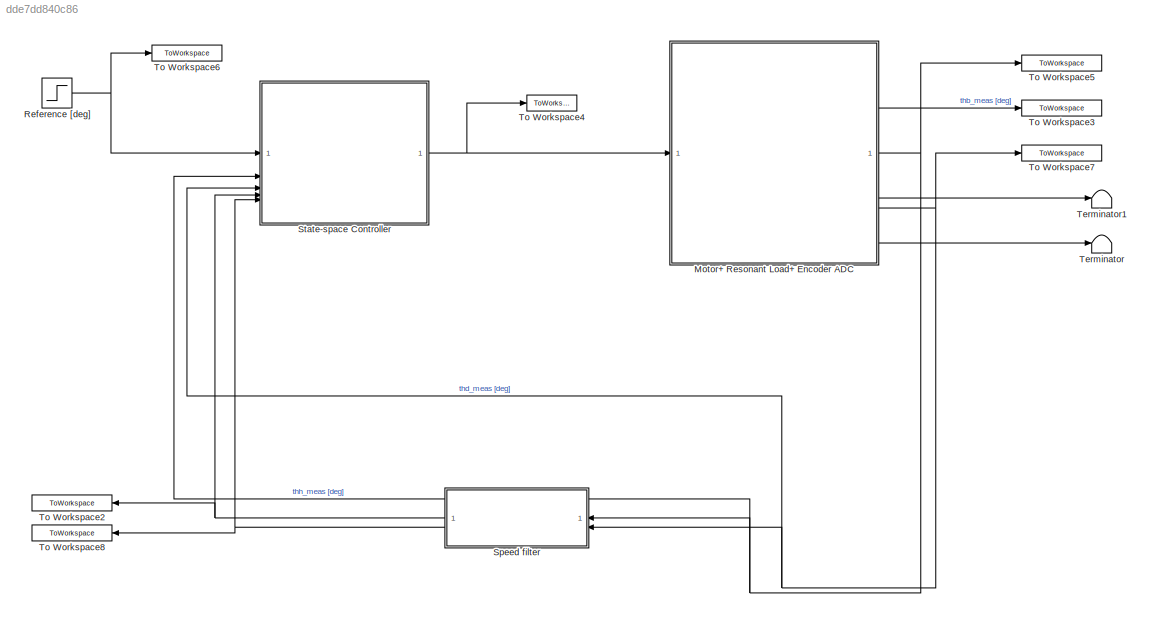
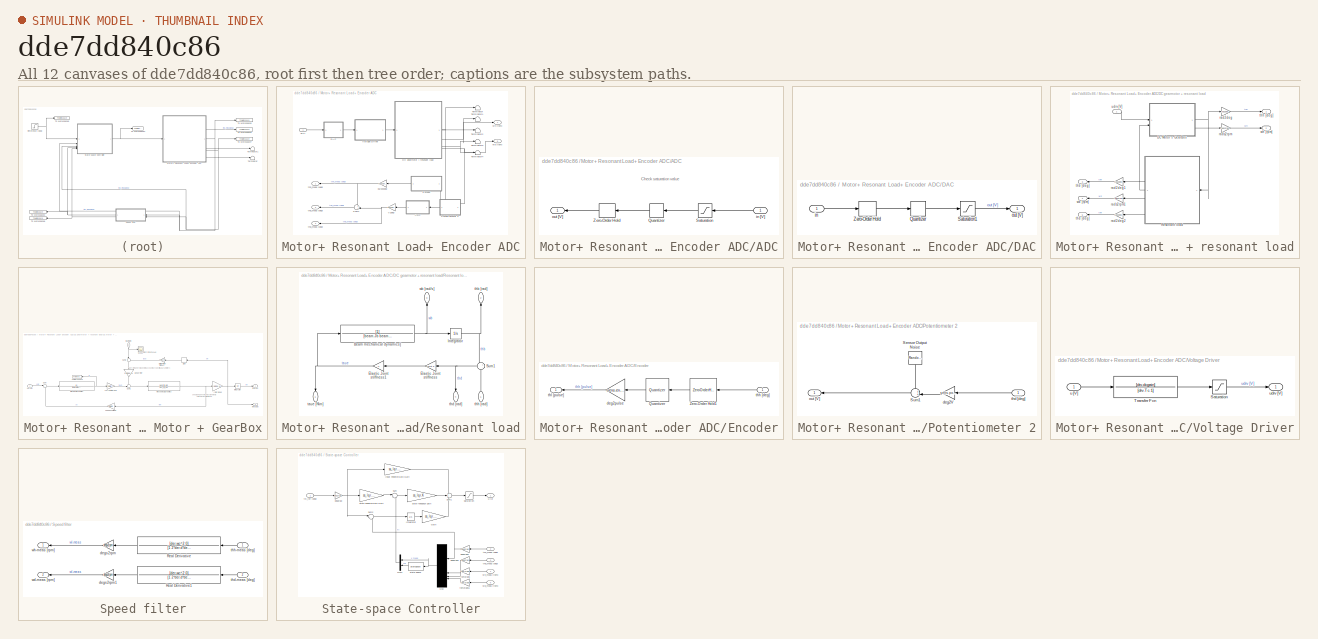
[diagram: thumbnail index - all 12 canvases of the model, root first then tree order]
MODEL slx_dde7dd840c86
KIND model
CONFIG AbsTol = auto
CONFIG EnableMultiTasking = off
CONFIG FixedStep = auto
CONFIG MaxStep = auto
CONFIG MinStep = auto
CONFIG RelTol = 1e-3
CONFIG SampleTimeConstraint = Unconstrained
CONFIG SolverName = VariableStepAuto
CONFIG StartTime = 0.0
CONFIG StopTime = 10
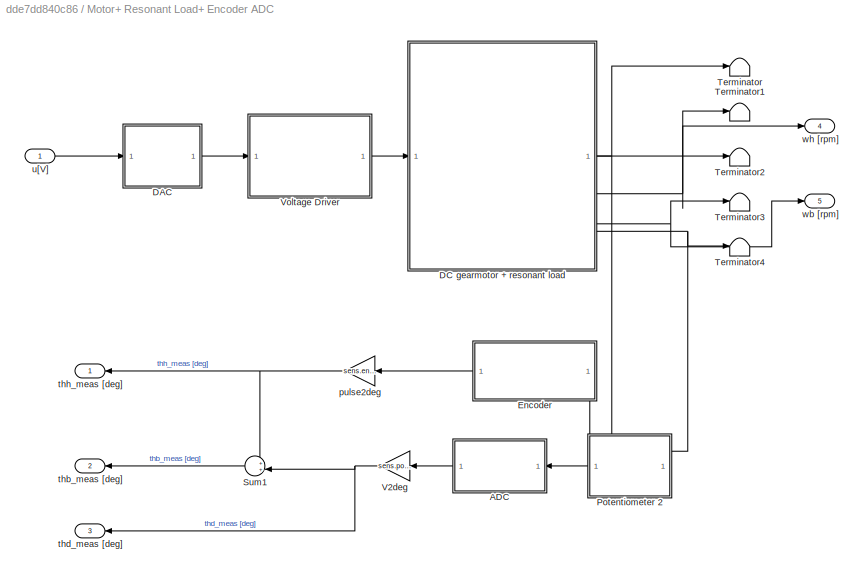
BLOCK [SubSystem] Motor+ Resonant Load+ Encoder ADC
BLOCK [SubSystem] Motor+ Resonant Load+ Encoder ADC/ADC
  NameLocation = top
BLOCK [Quantizer] Motor+ Resonant Load+ Encoder ADC/ADC/Quantizer
  NameLocation = top
  QuantizationInterval = daq.adc.q
BLOCK [Saturate] Motor+ Resonant Load+ Encoder ADC/ADC/Saturation
  LowerLimit = -10
  NameLocation = top
  UpperLimit = 10
BLOCK [ZeroOrderHold] Motor+ Resonant Load+ Encoder ADC/ADC/Zero-Order Hold
  NameLocation = top
  SampleTime = Ts
BLOCK [Inport] Motor+ Resonant Load+ Encoder ADC/ADC/in [V]
  NameLocation = top
BLOCK [Outport] Motor+ Resonant Load+ Encoder ADC/ADC/out [V]
  NameLocation = top
BLOCK [SubSystem] Motor+ Resonant Load+ Encoder ADC/DAC
BLOCK [Quantizer] Motor+ Resonant Load+ Encoder ADC/DAC/Quantizer
  QuantizationInterval = daq.dac.q
BLOCK [Saturate] Motor+ Resonant Load+ Encoder ADC/DAC/Saturation1
  LowerLimit = -10
  UpperLimit = 10
BLOCK [ZeroOrderHold] Motor+ Resonant Load+ Encoder ADC/DAC/Zero-Order Hold
  SampleTime = Ts
BLOCK [Inport] Motor+ Resonant Load+ Encoder ADC/DAC/in
BLOCK [Outport] Motor+ Resonant Load+ Encoder ADC/DAC/out [V]
BLOCK [SubSystem] Motor+ Resonant Load+ Encoder ADC/DC gearmotor + resonant load
BLOCK [SubSystem] Motor+ Resonant Load+ Encoder ADC/DC gearmotor + resonant load/DC Motor + GearBox
BLOCK [TransferFcn] Motor+ Resonant Load+ Encoder ADC/DC gearmotor + resonant load/DC Motor + GearBox/Electrical Dynamics
  Denominator = [mot.L mot.R+sens.curr.Rs]
BLOCK [Integrator] Motor+ Resonant Load+ Encoder ADC/DC gearmotor + resonant load/DC Motor + GearBox/Integrator
  IgnoreLimit = on
BLOCK [TransferFcn] Motor+ Resonant Load+ Encoder ADC/DC gearmotor + resonant load/DC Motor + GearBox/Mechanical Dynamics
  Denominator = Den_tm_wm
  Numerator = Num_tm_wm
BLOCK [Scope] Motor+ Resonant Load+ Encoder ADC/DC gearmotor + resonant load/DC Motor + GearBox/Scope
  Floating = off
  NumInputPorts = 1
  ScopeSpecificationString = Simulink.scopes.TimeScopeBlockCfg('CurrentConfiguration', extmgr.ConfigurationSet(extmgr.Configuration('Core','General UI',true),extmgr.Configuration('Core','Source UI',true),extmgr.Configuration('Sources','WiredSimulink',true,'DataLoggingVariableName','ScopeData2'),extmgr.Configuration('Visuals','Time Domain',true,'SerializedDisplays',{struct('MinYLimReal','-0.09949','MaxYLimReal','0.19068','YLab...<+1368ch>
BLOCK [Signum] Motor+ Resonant Load+ Encoder ADC/DC gearmotor + resonant load/DC Motor + GearBox/Sign
  NameLocation = top
  ZeroCross = off
BLOCK [Gain] Motor+ Resonant Load+ Encoder ADC/DC gearmotor + resonant load/DC Motor + GearBox/Static friction [REAL]
  Gain = estimated.tausf
  NameLocation = top
BLOCK [Sum] Motor+ Resonant Load+ Encoder ADC/DC gearmotor + resonant load/DC Motor + GearBox/Sum
  Inputs = |+-
BLOCK [Sum] Motor+ Resonant Load+ Encoder ADC/DC gearmotor + resonant load/DC Motor + GearBox/Sum1
  Inputs = -+|
BLOCK [Sum] Motor+ Resonant Load+ Encoder ADC/DC gearmotor + resonant load/DC Motor + GearBox/Sum2
  Inputs = |++
  NameLocation = left
BLOCK [ToWorkspace] Motor+ Resonant Load+ Encoder ADC/DC gearmotor + resonant load/DC Motor + GearBox/To Workspace
  FixptAsFi = on
  MaxDataPoints = inf
  NameLocation = top
  SampleTime = -1
  SaveFormat = Structure With Time
  VariableName = ia
BLOCK [Gain] Motor+ Resonant Load+ Encoder ADC/DC gearmotor + resonant load/DC Motor + GearBox/current2torque
  Gain = mot.Kt
BLOCK [Gain] Motor+ Resonant Load+ Encoder ADC/DC gearmotor + resonant load/DC Motor + GearBox/laod2rotor
  Gain = 1/gbox.N
  NameLocation = left
BLOCK [Gain] Motor+ Resonant Load+ Encoder ADC/DC gearmotor + resonant load/DC Motor + GearBox/rotor2load
  Gain = 1/gbox.N
BLOCK [Gain] Motor+ Resonant Load+ Encoder ADC/DC gearmotor + resonant load/DC Motor + GearBox/speed2voltage
  Gain = mot.Ke
  NameLocation = top
BLOCK [Inport] Motor+ Resonant Load+ Encoder ADC/DC gearmotor + resonant load/DC Motor + GearBox/taue [Nm]
  NameLocation = left
  Port = 2
BLOCK [Outport] Motor+ Resonant Load+ Encoder ADC/DC gearmotor + resonant load/DC Motor + GearBox/thh [rad]
BLOCK [Inport] Motor+ Resonant Load+ Encoder ADC/DC gearmotor + resonant load/DC Motor + GearBox/udrv [V]
BLOCK [Outport] Motor+ Resonant Load+ Encoder ADC/DC gearmotor + resonant load/DC Motor + GearBox/wh [rad//s]
  Port = 2
BLOCK [SubSystem] Motor+ Resonant Load+ Encoder ADC/DC gearmotor + resonant load/Resonant load
  NameLocation = top
BLOCK [TransferFcn] Motor+ Resonant Load+ Encoder ADC/DC gearmotor + resonant load/Resonant load/Beam mechanical dynamics]
  Denominator = [beam.Jb beam.Bb]
BLOCK [Gain] Motor+ Resonant Load+ Encoder ADC/DC gearmotor + resonant load/Resonant load/Elastic Joint stiffness
  Gain = joint.k
  NameLocation = top
BLOCK [Gain] Motor+ Resonant Load+ Encoder ADC/DC gearmotor + resonant load/Resonant load/Elastic Joint stiffness1
  Gain = -1
  NameLocation = top
BLOCK [Integrator] Motor+ Resonant Load+ Encoder ADC/DC gearmotor + resonant load/Resonant load/Integrator
BLOCK [Sum] Motor+ Resonant Load+ Encoder ADC/DC gearmotor + resonant load/Resonant load/Sum1
  Inputs = +-
  NameLocation = top
BLOCK [Outport] Motor+ Resonant Load+ Encoder ADC/DC gearmotor + resonant load/Resonant load/taue [N\m]
  NameLocation = left
BLOCK [Outport] Motor+ Resonant Load+ Encoder ADC/DC gearmotor + resonant load/Resonant load/thb [rad]
  NameLocation = right
  Port = 2
BLOCK [Outport] Motor+ Resonant Load+ Encoder ADC/DC gearmotor + resonant load/Resonant load/thd [rad]
  NameLocation = left
  Port = 4
BLOCK [Inport] Motor+ Resonant Load+ Encoder ADC/DC gearmotor + resonant load/Resonant load/thh [rad]
  NameLocation = right
BLOCK [Outport] Motor+ Resonant Load+ Encoder ADC/DC gearmotor + resonant load/Resonant load/wb [rad//s]
  NameLocation = right
  Port = 3
BLOCK [Gain] Motor+ Resonant Load+ Encoder ADC/DC gearmotor + resonant load/rad2deg
  Gain = rad2deg
BLOCK [Gain] Motor+ Resonant Load+ Encoder ADC/DC gearmotor + resonant load/rad2deg1
  Gain = rad2deg
  NameLocation = top
BLOCK [Gain] Motor+ Resonant Load+ Encoder ADC/DC gearmotor + resonant load/rad2deg2
  Gain = rad2deg
  NameLocation = top
BLOCK [Gain] Motor+ Resonant Load+ Encoder ADC/DC gearmotor + resonant load/rads2rpm
  Gain = rads2rpm
BLOCK [Gain] Motor+ Resonant Load+ Encoder ADC/DC gearmotor + resonant load/rads2rpm1
  Gain = rads2rpm
  NameLocation = top
BLOCK [Outport] Motor+ Resonant Load+ Encoder ADC/DC gearmotor + resonant load/thb [deg]
  NameLocation = top
  Port = 3
BLOCK [Outport] Motor+ Resonant Load+ Encoder ADC/DC gearmotor + resonant load/thd [deg]
  NameLocation = top
  Port = 5
BLOCK [Outport] Motor+ Resonant Load+ Encoder ADC/DC gearmotor + resonant load/thh [deg]
BLOCK [Inport] Motor+ Resonant Load+ Encoder ADC/DC gearmotor + resonant load/udrv [V]
BLOCK [Outport] Motor+ Resonant Load+ Encoder ADC/DC gearmotor + resonant load/wb [rpm]
  NameLocation = top
  Port = 4
BLOCK [Outport] Motor+ Resonant Load+ Encoder ADC/DC gearmotor + resonant load/wh [rpm]
  Port = 2
BLOCK [SubSystem] Motor+ Resonant Load+ Encoder ADC/Encoder
  NameLocation = top
BLOCK [Quantizer] Motor+ Resonant Load+ Encoder ADC/Encoder/Quantizer
  NameLocation = top
  QuantizationInterval = sens.enc.pulse2deg
BLOCK [ZeroOrderHold] Motor+ Resonant Load+ Encoder ADC/Encoder/Zero-Order Hold1
  NameLocation = top
  SampleTime = Ts
BLOCK [Gain] Motor+ Resonant Load+ Encoder ADC/Encoder/deg2pulse
  Gain = sens.enc.deg2pulse
BLOCK [Inport] Motor+ Resonant Load+ Encoder ADC/Encoder/thh [deg]
BLOCK [Outport] Motor+ Resonant Load+ Encoder ADC/Encoder/thl [pulse]
BLOCK [SubSystem] Motor+ Resonant Load+ Encoder ADC/Potentiometer 2
  NameLocation = top
BLOCK [RandomNumber] Motor+ Resonant Load+ Encoder ADC/Potentiometer 2/Sensor Output Noise
  NameLocation = left
  SampleTime = Ts
  Variance = sens.pot2.var
BLOCK [Sum] Motor+ Resonant Load+ Encoder ADC/Potentiometer 2/Sum1
  Inputs = ++|
  NameLocation = top
BLOCK [Gain] Motor+ Resonant Load+ Encoder ADC/Potentiometer 2/deg2V
  Gain = sens.pot2.deg2V
  NameLocation = top
BLOCK [Outport] Motor+ Resonant Load+ Encoder ADC/Potentiometer 2/out [V]
BLOCK [Inport] Motor+ Resonant Load+ Encoder ADC/Potentiometer 2/thd [deg]
BLOCK [Sum] Motor+ Resonant Load+ Encoder ADC/Sum1
  Inputs = ++|
  NameLocation = top
BLOCK [Terminator] Motor+ Resonant Load+ Encoder ADC/Terminator
BLOCK [Terminator] Motor+ Resonant Load+ Encoder ADC/Terminator1
BLOCK [Terminator] Motor+ Resonant Load+ Encoder ADC/Terminator2
BLOCK [Terminator] Motor+ Resonant Load+ Encoder ADC/Terminator3
BLOCK [Terminator] Motor+ Resonant Load+ Encoder ADC/Terminator4
BLOCK [Gain] Motor+ Resonant Load+ Encoder ADC/V2deg
  Gain = sens.pot2.V2deg
  NameLocation = top
BLOCK [SubSystem] Motor+ Resonant Load+ Encoder ADC/Voltage Driver
BLOCK [Saturate] Motor+ Resonant Load+ Encoder ADC/Voltage Driver/Saturation
  LowerLimit = -12
  UpperLimit = 12
BLOCK [TransferFcn] Motor+ Resonant Load+ Encoder ADC/Voltage Driver/Transfer Fcn
  Denominator = [drv.Tc 1]
  Numerator = [drv.dcgain]
BLOCK [Inport] Motor+ Resonant Load+ Encoder ADC/Voltage Driver/u [V]
BLOCK [Outport] Motor+ Resonant Load+ Encoder ADC/Voltage Driver/udrv [V]
BLOCK [Gain] Motor+ Resonant Load+ Encoder ADC/pulse2deg
  Gain = sens.enc.pulse2deg
  NameLocation = top
BLOCK [Outport] Motor+ Resonant Load+ Encoder ADC/thb_meas [deg]
  NameLocation = top
  Port = 2
BLOCK [Outport] Motor+ Resonant Load+ Encoder ADC/thd_meas [deg]
  NameLocation = top
  Port = 3
BLOCK [Outport] Motor+ Resonant Load+ Encoder ADC/thh_meas [deg]
  NameLocation = top
BLOCK [Inport] Motor+ Resonant Load+ Encoder ADC/u[V]
BLOCK [Outport] Motor+ Resonant Load+ Encoder ADC/wb [rpm]
  Port = 5
BLOCK [Outport] Motor+ Resonant Load+ Encoder ADC/wh [rpm]
  Port = 4
BLOCK [Step] Reference [deg]
  After = simul.stepdeg
  SampleTime = Ts
BLOCK [SubSystem] Speed filter
  NameLocation = top
BLOCK [TransferFcn] Speed filter/Real Derivative
  Denominator = [1 2*der.d*der.wc der.wc^2]
  NameLocation = top
  Numerator = [der.wc^2 0]
BLOCK [TransferFcn] Speed filter/Real Derivative1
  Denominator = [1 2*der.d*der.wc der.wc^2]
  NameLocation = top
  Numerator = [der.wc^2 0]
BLOCK [Gain] Speed filter/degs2rpm
  Gain = degs2rpm
BLOCK [Gain] Speed filter/degs2rpm1
  Gain = degs2rpm
BLOCK [Inport] Speed filter/thd-meas [deg]
  NameLocation = top
  Port = 2
BLOCK [Inport] Speed filter/thh-meas [deg]
BLOCK [Outport] Speed filter/wd-meas [rpm]
  NameLocation = top
  Port = 2
BLOCK [Outport] Speed filter/wh-meas [rpm]
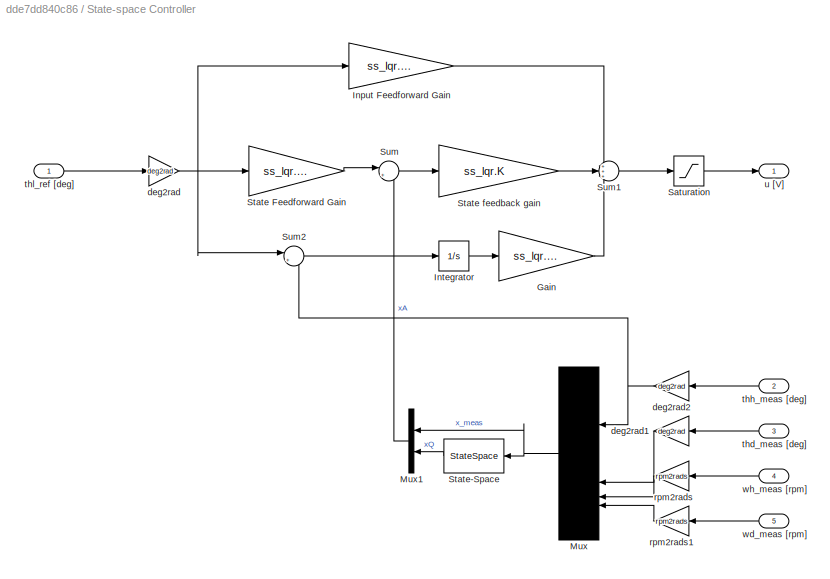
BLOCK [SubSystem] State-space Controller
BLOCK [Gain] State-space Controller/Gain
  Gain = ss_lqr.Ki
BLOCK [Gain] State-space Controller/Input Feedforward Gain
  Gain = ss_lqr.Nu
BLOCK [Integrator] State-space Controller/Integrator
BLOCK [Mux] State-space Controller/Mux
  DisplayOption = signals
  NameLocation = top
BLOCK [Mux] State-space Controller/Mux1
  DisplayOption = bar
  Inputs = 2
  NameLocation = top
BLOCK [Saturate] State-space Controller/Saturation
  LowerLimit = -10
  UpperLimit = 10
BLOCK [Gain] State-space Controller/State Feedforward Gain
  Gain = ss_lqr.Nx
BLOCK [Gain] State-space Controller/State feedback gain
  Gain = ss_lqr.K
  Multiplication = Matrix(K*u)
BLOCK [StateSpace] State-space Controller/State-Space
  A = ss_lqr.AQ
  B = ss_lqr.BQ
  C = ss_lqr.I
  D = ss_lqr.zero
  InitialCondition = 0
  NameLocation = top
BLOCK [Sum] State-space Controller/Sum
  Inputs = |+-
BLOCK [Sum] State-space Controller/Sum1
  Inputs = +++
BLOCK [Sum] State-space Controller/Sum2
  Inputs = |+-
BLOCK [Gain] State-space Controller/deg2rad
  Gain = deg2rad
BLOCK [Gain] State-space Controller/deg2rad1
  Gain = deg2rad
  NameLocation = top
BLOCK [Gain] State-space Controller/deg2rad2
  Gain = deg2rad
  NameLocation = top
BLOCK [Gain] State-space Controller/rpm2rads
  Gain = rpm2rads
BLOCK [Gain] State-space Controller/rpm2rads1
  Gain = rpm2rads
BLOCK [Inport] State-space Controller/thd_meas [deg]
  NameLocation = top
  Port = 3
BLOCK [Inport] State-space Controller/thh_meas [deg]
  NameLocation = top
  Port = 2
BLOCK [Inport] State-space Controller/thl_ref [deg]
BLOCK [Outport] State-space Controller/u [V]
BLOCK [Inport] State-space Controller/wd_meas [rpm]
  NameLocation = top
  Port = 5
BLOCK [Inport] State-space Controller/wh_meas [rpm]
  NameLocation = top
  Port = 4
BLOCK [Terminator] Terminator
BLOCK [Terminator] Terminator1
BLOCK [ToWorkspace] To Workspace2
  FixptAsFi = on
  MaxDataPoints = inf
  NameLocation = top
  SampleTime = Ts
  SaveFormat = Structure With Time
  VariableName = wh_meas
BLOCK [ToWorkspace] To Workspace3
  FixptAsFi = on
  MaxDataPoints = inf
  SampleTime = Ts
  SaveFormat = Structure With Time
  VariableName = thb_meas
BLOCK [ToWorkspace] To Workspace4
  FixptAsFi = on
  MaxDataPoints = inf
  SampleTime = Ts
  SaveFormat = Structure With Time
  VariableName = u
BLOCK [ToWorkspace] To Workspace5
  FixptAsFi = on
  MaxDataPoints = inf
  SampleTime = Ts
  SaveFormat = Structure With Time
  VariableName = thh_meas
BLOCK [ToWorkspace] To Workspace6
  FixptAsFi = on
  MaxDataPoints = inf
  NameLocation = top
  SampleTime = -1
  SaveFormat = Structure With Time
  VariableName = thh_ref
BLOCK [ToWorkspace] To Workspace7
  FixptAsFi = on
  MaxDataPoints = inf
  SampleTime = Ts
  SaveFormat = Structure With Time
  VariableName = thd_meas
BLOCK [ToWorkspace] To Workspace8
  FixptAsFi = on
  MaxDataPoints = inf
  NameLocation = top
  SampleTime = Ts
  SaveFormat = Structure With Time
  VariableName = wd_meas
ANNOTATION Motor+ Resonant Load+ Encoder ADC/ADC: Check saturation value
ANNOTATION Motor+ Resonant Load+ Encoder ADC/DC gearmotor + resonant load/DC Motor + GearBox: Everything here takes into account our specifica parameters
ANNOTATION Motor+ Resonant Load+ Encoder ADC/DC gearmotor + resonant load/DC Motor + GearBox: Static Friction [FIX GAIN]
ANNOTATION Motor+ Resonant Load+ Encoder ADC/DC gearmotor + resonant load/DC Motor + GearBox: should be gbox.N from assignments but from calculation its 1/N
LINE Motor+ Resonant Load+ Encoder ADC/ADC/Quantizer:1 -> Motor+ Resonant Load+ Encoder ADC/ADC/Zero-Order Hold:1
LINE Motor+ Resonant Load+ Encoder ADC/ADC/Saturation:1 -> Motor+ Resonant Load+ Encoder ADC/ADC/Quantizer:1
LINE Motor+ Resonant Load+ Encoder ADC/ADC/Zero-Order Hold:1 -> Motor+ Resonant Load+ Encoder ADC/ADC/out [V]:1
LINE Motor+ Resonant Load+ Encoder ADC/ADC/in [V]:1 -> Motor+ Resonant Load+ Encoder ADC/ADC/Saturation:1
LINE Motor+ Resonant Load+ Encoder ADC/ADC:1 -> Motor+ Resonant Load+ Encoder ADC/V2deg:1
LINE Motor+ Resonant Load+ Encoder ADC/DAC/Quantizer:1 -> Motor+ Resonant Load+ Encoder ADC/DAC/Saturation1:1
LINE Motor+ Resonant Load+ Encoder ADC/DAC/Saturation1:1 -> Motor+ Resonant Load+ Encoder ADC/DAC/out [V]:1
LINE Motor+ Resonant Load+ Encoder ADC/DAC/Zero-Order Hold:1 -> Motor+ Resonant Load+ Encoder ADC/DAC/Quantizer:1
LINE Motor+ Resonant Load+ Encoder ADC/DAC/in:1 -> Motor+ Resonant Load+ Encoder ADC/DAC/Zero-Order Hold:1
LINE Motor+ Resonant Load+ Encoder ADC/DAC:1 -> Motor+ Resonant Load+ Encoder ADC/Voltage Driver:1
NET Motor+ Resonant Load+ Encoder ADC/DC gearmotor + resonant load/DC Motor + GearBox/Electrical Dynamics:1 -> Motor+ Resonant Load+ Encoder ADC/DC gearmotor + resonant load/DC Motor + GearBox/To Workspace:1, Motor+ Resonant Load+ Encoder ADC/DC gearmotor + resonant load/DC Motor + GearBox/current2torque:1
LINE Motor+ Resonant Load+ Encoder ADC/DC gearmotor + resonant load/DC Motor + GearBox/Integrator:1 -> Motor+ Resonant Load+ Encoder ADC/DC gearmotor + resonant load/DC Motor + GearBox/thh [rad]:1
NET Motor+ Resonant Load+ Encoder ADC/DC gearmotor + resonant load/DC Motor + GearBox/Mechanical Dynamics:1 -> Motor+ Resonant Load+ Encoder ADC/DC gearmotor + resonant load/DC Motor + GearBox/rotor2load:1, Motor+ Resonant Load+ Encoder ADC/DC gearmotor + resonant load/DC Motor + GearBox/speed2voltage:1
LINE Motor+ Resonant Load+ Encoder ADC/DC gearmotor + resonant load/DC Motor + GearBox/Sign:1 -> Motor+ Resonant Load+ Encoder ADC/DC gearmotor + resonant load/DC Motor + GearBox/Static friction [REAL]:1
LINE Motor+ Resonant Load+ Encoder ADC/DC gearmotor + resonant load/DC Motor + GearBox/Static friction [REAL]:1 -> Motor+ Resonant Load+ Encoder ADC/DC gearmotor + resonant load/DC Motor + GearBox/Sum2:2
LINE Motor+ Resonant Load+ Encoder ADC/DC gearmotor + resonant load/DC Motor + GearBox/Sum1:1 -> Motor+ Resonant Load+ Encoder ADC/DC gearmotor + resonant load/DC Motor + GearBox/Mechanical Dynamics:1
LINE Motor+ Resonant Load+ Encoder ADC/DC gearmotor + resonant load/DC Motor + GearBox/Sum2:1 -> Motor+ Resonant Load+ Encoder ADC/DC gearmotor + resonant load/DC Motor + GearBox/laod2rotor:1
LINE Motor+ Resonant Load+ Encoder ADC/DC gearmotor + resonant load/DC Motor + GearBox/Sum:1 -> Motor+ Resonant Load+ Encoder ADC/DC gearmotor + resonant load/DC Motor + GearBox/Electrical Dynamics:1
LINE Motor+ Resonant Load+ Encoder ADC/DC gearmotor + resonant load/DC Motor + GearBox/current2torque:1 -> Motor+ Resonant Load+ Encoder ADC/DC gearmotor + resonant load/DC Motor + GearBox/Sum1:2
LINE Motor+ Resonant Load+ Encoder ADC/DC gearmotor + resonant load/DC Motor + GearBox/laod2rotor:1 -> Motor+ Resonant Load+ Encoder ADC/DC gearmotor + resonant load/DC Motor + GearBox/Sum1:1
NET Motor+ Resonant Load+ Encoder ADC/DC gearmotor + resonant load/DC Motor + GearBox/rotor2load:1 -> Motor+ Resonant Load+ Encoder ADC/DC gearmotor + resonant load/DC Motor + GearBox/Integrator:1, Motor+ Resonant Load+ Encoder ADC/DC gearmotor + resonant load/DC Motor + GearBox/Sign:1, Motor+ Resonant Load+ Encoder ADC/DC gearmotor + resonant load/DC Motor + GearBox/wh [rad//s]:1
LINE Motor+ Resonant Load+ Encoder ADC/DC gearmotor + resonant load/DC Motor + GearBox/speed2voltage:1 -> Motor+ Resonant Load+ Encoder ADC/DC gearmotor + resonant load/DC Motor + GearBox/Sum:2
NET Motor+ Resonant Load+ Encoder ADC/DC gearmotor + resonant load/DC Motor + GearBox/taue [Nm]:1 -> Motor+ Resonant Load+ Encoder ADC/DC gearmotor + resonant load/DC Motor + GearBox/Scope:1, Motor+ Resonant Load+ Encoder ADC/DC gearmotor + resonant load/DC Motor + GearBox/Sum2:1
LINE Motor+ Resonant Load+ Encoder ADC/DC gearmotor + resonant load/DC Motor + GearBox/udrv [V]:1 -> Motor+ Resonant Load+ Encoder ADC/DC gearmotor + resonant load/DC Motor + GearBox/Sum:1
NET Motor+ Resonant Load+ Encoder ADC/DC gearmotor + resonant load/DC Motor + GearBox:1 -> Motor+ Resonant Load+ Encoder ADC/DC gearmotor + resonant load/Resonant load:1, Motor+ Resonant Load+ Encoder ADC/DC gearmotor + resonant load/rad2deg:1
LINE Motor+ Resonant Load+ Encoder ADC/DC gearmotor + resonant load/DC Motor + GearBox:2 -> Motor+ Resonant Load+ Encoder ADC/DC gearmotor + resonant load/rads2rpm:1
NET Motor+ Resonant Load+ Encoder ADC/DC gearmotor + resonant load/Resonant load/Beam mechanical dynamics]:1 -> Motor+ Resonant Load+ Encoder ADC/DC gearmotor + resonant load/Resonant load/Integrator:1, Motor+ Resonant Load+ Encoder ADC/DC gearmotor + resonant load/Resonant load/wb [rad//s]:1
NET Motor+ Resonant Load+ Encoder ADC/DC gearmotor + resonant load/Resonant load/Elastic Joint stiffness1:1 -> Motor+ Resonant Load+ Encoder ADC/DC gearmotor + resonant load/Resonant load/Beam mechanical dynamics]:1, Motor+ Resonant Load+ Encoder ADC/DC gearmotor + resonant load/Resonant load/taue [N\m]:1
LINE Motor+ Resonant Load+ Encoder ADC/DC gearmotor + resonant load/Resonant load/Elastic Joint stiffness:1 -> Motor+ Resonant Load+ Encoder ADC/DC gearmotor + resonant load/Resonant load/Elastic Joint stiffness1:1
NET Motor+ Resonant Load+ Encoder ADC/DC gearmotor + resonant load/Resonant load/Integrator:1 -> Motor+ Resonant Load+ Encoder ADC/DC gearmotor + resonant load/Resonant load/Sum1:1, Motor+ Resonant Load+ Encoder ADC/DC gearmotor + resonant load/Resonant load/thb [rad]:1
NET Motor+ Resonant Load+ Encoder ADC/DC gearmotor + resonant load/Resonant load/Sum1:1 -> Motor+ Resonant Load+ Encoder ADC/DC gearmotor + resonant load/Resonant load/Elastic Joint stiffness:1, Motor+ Resonant Load+ Encoder ADC/DC gearmotor + resonant load/Resonant load/thd [rad]:1
LINE Motor+ Resonant Load+ Encoder ADC/DC gearmotor + resonant load/Resonant load/thh [rad]:1 -> Motor+ Resonant Load+ Encoder ADC/DC gearmotor + resonant load/Resonant load/Sum1:2
LINE Motor+ Resonant Load+ Encoder ADC/DC gearmotor + resonant load/Resonant load:1 -> Motor+ Resonant Load+ Encoder ADC/DC gearmotor + resonant load/DC Motor + GearBox:2
LINE Motor+ Resonant Load+ Encoder ADC/DC gearmotor + resonant load/Resonant load:2 -> Motor+ Resonant Load+ Encoder ADC/DC gearmotor + resonant load/rad2deg1:1
LINE Motor+ Resonant Load+ Encoder ADC/DC gearmotor + resonant load/Resonant load:3 -> Motor+ Resonant Load+ Encoder ADC/DC gearmotor + resonant load/rads2rpm1:1
LINE Motor+ Resonant Load+ Encoder ADC/DC gearmotor + resonant load/Resonant load:4 -> Motor+ Resonant Load+ Encoder ADC/DC gearmotor + resonant load/rad2deg2:1
LINE Motor+ Resonant Load+ Encoder ADC/DC gearmotor + resonant load/rad2deg1:1 -> Motor+ Resonant Load+ Encoder ADC/DC gearmotor + resonant load/thb [deg]:1
LINE Motor+ Resonant Load+ Encoder ADC/DC gearmotor + resonant load/rad2deg2:1 -> Motor+ Resonant Load+ Encoder ADC/DC gearmotor + resonant load/thd [deg]:1
LINE Motor+ Resonant Load+ Encoder ADC/DC gearmotor + resonant load/rad2deg:1 -> Motor+ Resonant Load+ Encoder ADC/DC gearmotor + resonant load/thh [deg]:1
LINE Motor+ Resonant Load+ Encoder ADC/DC gearmotor + resonant load/rads2rpm1:1 -> Motor+ Resonant Load+ Encoder ADC/DC gearmotor + resonant load/wb [rpm]:1
LINE Motor+ Resonant Load+ Encoder ADC/DC gearmotor + resonant load/rads2rpm:1 -> Motor+ Resonant Load+ Encoder ADC/DC gearmotor + resonant load/wh [rpm]:1
LINE Motor+ Resonant Load+ Encoder ADC/DC gearmotor + resonant load/udrv [V]:1 -> Motor+ Resonant Load+ Encoder ADC/DC gearmotor + resonant load/DC Motor + GearBox:1
NET Motor+ Resonant Load+ Encoder ADC/DC gearmotor + resonant load:1 -> Motor+ Resonant Load+ Encoder ADC/Encoder:1, Motor+ Resonant Load+ Encoder ADC/Terminator:1
NET Motor+ Resonant Load+ Encoder ADC/DC gearmotor + resonant load:2 -> Motor+ Resonant Load+ Encoder ADC/Terminator1:1, Motor+ Resonant Load+ Encoder ADC/wh [rpm]:1
LINE Motor+ Resonant Load+ Encoder ADC/DC gearmotor + resonant load:3 -> Motor+ Resonant Load+ Encoder ADC/Terminator2:1
NET Motor+ Resonant Load+ Encoder ADC/DC gearmotor + resonant load:4 -> Motor+ Resonant Load+ Encoder ADC/Terminator3:1, Motor+ Resonant Load+ Encoder ADC/wb [rpm]:1
NET Motor+ Resonant Load+ Encoder ADC/DC gearmotor + resonant load:5 -> Motor+ Resonant Load+ Encoder ADC/Potentiometer 2:1, Motor+ Resonant Load+ Encoder ADC/Terminator4:1
LINE Motor+ Resonant Load+ Encoder ADC/Encoder/Quantizer:1 -> Motor+ Resonant Load+ Encoder ADC/Encoder/deg2pulse:1
LINE Motor+ Resonant Load+ Encoder ADC/Encoder/Zero-Order Hold1:1 -> Motor+ Resonant Load+ Encoder ADC/Encoder/Quantizer:1
LINE Motor+ Resonant Load+ Encoder ADC/Encoder/deg2pulse:1 -> Motor+ Resonant Load+ Encoder ADC/Encoder/thl [pulse]:1
LINE Motor+ Resonant Load+ Encoder ADC/Encoder/thh [deg]:1 -> Motor+ Resonant Load+ Encoder ADC/Encoder/Zero-Order Hold1:1
LINE Motor+ Resonant Load+ Encoder ADC/Encoder:1 -> Motor+ Resonant Load+ Encoder ADC/pulse2deg:1
LINE Motor+ Resonant Load+ Encoder ADC/Potentiometer 2/Sensor Output Noise:1 -> Motor+ Resonant Load+ Encoder ADC/Potentiometer 2/Sum1:1
LINE Motor+ Resonant Load+ Encoder ADC/Potentiometer 2/Sum1:1 -> Motor+ Resonant Load+ Encoder ADC/Potentiometer 2/out [V]:1
LINE Motor+ Resonant Load+ Encoder ADC/Potentiometer 2/deg2V:1 -> Motor+ Resonant Load+ Encoder ADC/Potentiometer 2/Sum1:2
LINE Motor+ Resonant Load+ Encoder ADC/Potentiometer 2/thd [deg]:1 -> Motor+ Resonant Load+ Encoder ADC/Potentiometer 2/deg2V:1
LINE Motor+ Resonant Load+ Encoder ADC/Potentiometer 2:1 -> Motor+ Resonant Load+ Encoder ADC/ADC:1
LINE Motor+ Resonant Load+ Encoder ADC/Sum1:1 -> Motor+ Resonant Load+ Encoder ADC/thb_meas [deg]:1
NET Motor+ Resonant Load+ Encoder ADC/V2deg:1 -> Motor+ Resonant Load+ Encoder ADC/Sum1:2, Motor+ Resonant Load+ Encoder ADC/thd_meas [deg]:1
LINE Motor+ Resonant Load+ Encoder ADC/Voltage Driver/Saturation:1 -> Motor+ Resonant Load+ Encoder ADC/Voltage Driver/udrv [V]:1
LINE Motor+ Resonant Load+ Encoder ADC/Voltage Driver/Transfer Fcn:1 -> Motor+ Resonant Load+ Encoder ADC/Voltage Driver/Saturation:1
LINE Motor+ Resonant Load+ Encoder ADC/Voltage Driver/u [V]:1 -> Motor+ Resonant Load+ Encoder ADC/Voltage Driver/Transfer Fcn:1
LINE Motor+ Resonant Load+ Encoder ADC/Voltage Driver:1 -> Motor+ Resonant Load+ Encoder ADC/DC gearmotor + resonant load:1
NET Motor+ Resonant Load+ Encoder ADC/pulse2deg:1 -> Motor+ Resonant Load+ Encoder ADC/Sum1:1, Motor+ Resonant Load+ Encoder ADC/thh_meas [deg]:1
LINE Motor+ Resonant Load+ Encoder ADC/u[V]:1 -> Motor+ Resonant Load+ Encoder ADC/DAC:1
NET Motor+ Resonant Load+ Encoder ADC:1 -> Speed filter:1, State-space Controller:2, To Workspace5:1
LINE Motor+ Resonant Load+ Encoder ADC:2 -> To Workspace3:1
NET Motor+ Resonant Load+ Encoder ADC:3 -> Speed filter:2, State-space Controller:3, To Workspace7:1
LINE Motor+ Resonant Load+ Encoder ADC:4 -> Terminator1:1
LINE Motor+ Resonant Load+ Encoder ADC:5 -> Terminator:1
NET Reference [deg]:1 -> State-space Controller:1, To Workspace6:1
LINE Speed filter/Real Derivative1:1 -> Speed filter/degs2rpm1:1
LINE Speed filter/Real Derivative:1 -> Speed filter/degs2rpm:1
LINE Speed filter/degs2rpm1:1 -> Speed filter/wd-meas [rpm]:1
LINE Speed filter/degs2rpm:1 -> Speed filter/wh-meas [rpm]:1
LINE Speed filter/thd-meas [deg]:1 -> Speed filter/Real Derivative1:1
LINE Speed filter/thh-meas [deg]:1 -> Speed filter/Real Derivative:1
NET Speed filter:1 -> State-space Controller:4, To Workspace2:1
NET Speed filter:2 -> State-space Controller:5, To Workspace8:1
LINE State-space Controller/Gain:1 -> State-space Controller/Sum1:3
LINE State-space Controller/Input Feedforward Gain:1 -> State-space Controller/Sum1:1
LINE State-space Controller/Integrator:1 -> State-space Controller/Gain:1
LINE State-space Controller/Mux1:1 -> State-space Controller/Sum:2
NET State-space Controller/Mux:1 -> State-space Controller/Mux1:1, State-space Controller/State-Space:1
LINE State-space Controller/Saturation:1 -> State-space Controller/u [V]:1
LINE State-space Controller/State Feedforward Gain:1 -> State-space Controller/Sum:1
LINE State-space Controller/State feedback gain:1 -> State-space Controller/Sum1:2
LINE State-space Controller/State-Space:1 -> State-space Controller/Mux1:2
LINE State-space Controller/Sum1:1 -> State-space Controller/Saturation:1
LINE State-space Controller/Sum2:1 -> State-space Controller/Integrator:1
LINE State-space Controller/Sum:1 -> State-space Controller/State feedback gain:1
LINE State-space Controller/deg2rad1:1 -> State-space Controller/Mux:2
NET State-space Controller/deg2rad2:1 -> State-space Controller/Mux:1, State-space Controller/Sum2:2
NET State-space Controller/deg2rad:1 -> State-space Controller/Input Feedforward Gain:1, State-space Controller/State Feedforward Gain:1, State-space Controller/Sum2:1
LINE State-space Controller/rpm2rads1:1 -> State-space Controller/Mux:4
LINE State-space Controller/rpm2rads:1 -> State-space Controller/Mux:3
LINE State-space Controller/thd_meas [deg]:1 -> State-space Controller/deg2rad1:1
LINE State-space Controller/thh_meas [deg]:1 -> State-space Controller/deg2rad2:1
LINE State-space Controller/thl_ref [deg]:1 -> State-space Controller/deg2rad:1
LINE State-space Controller/wd_meas [rpm]:1 -> State-space Controller/rpm2rads1:1
LINE State-space Controller/wh_meas [rpm]:1 -> State-space Controller/rpm2rads:1
NET State-space Controller:1 -> Motor+ Resonant Load+ Encoder ADC:1, To Workspace4:1
note: NET lines group one-source signal fan-out (src -> all destinations, sorted); 1:1 wires keep LINE
